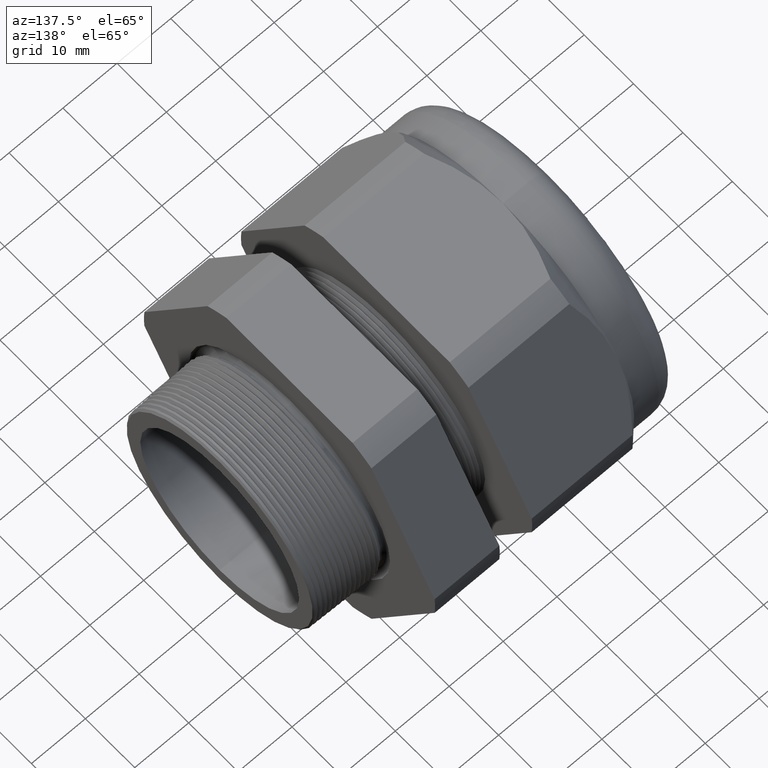
[diagram: clean part render]
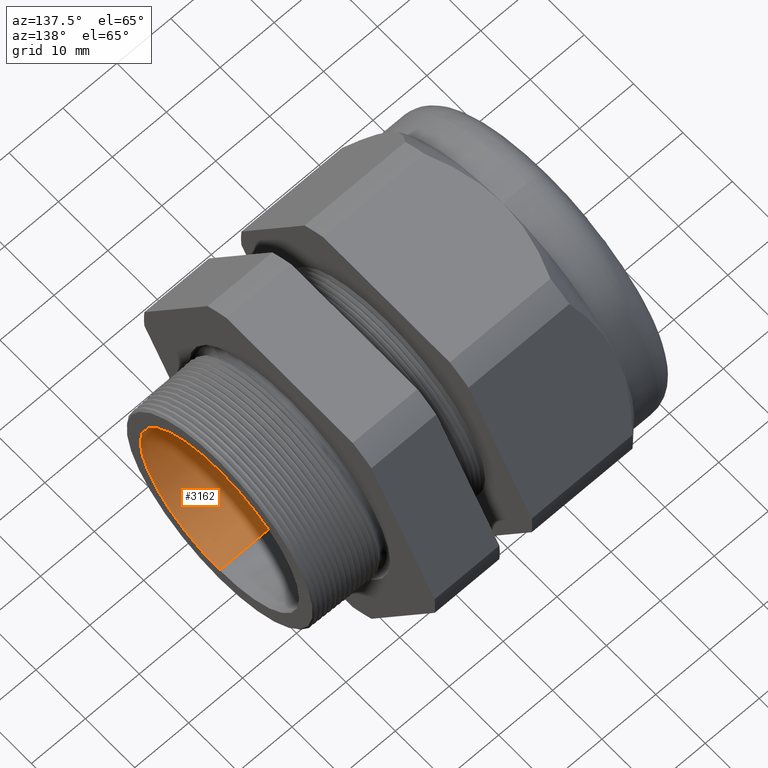
[diagram: same view with one face highlighted and labeled with its STEP entity id]
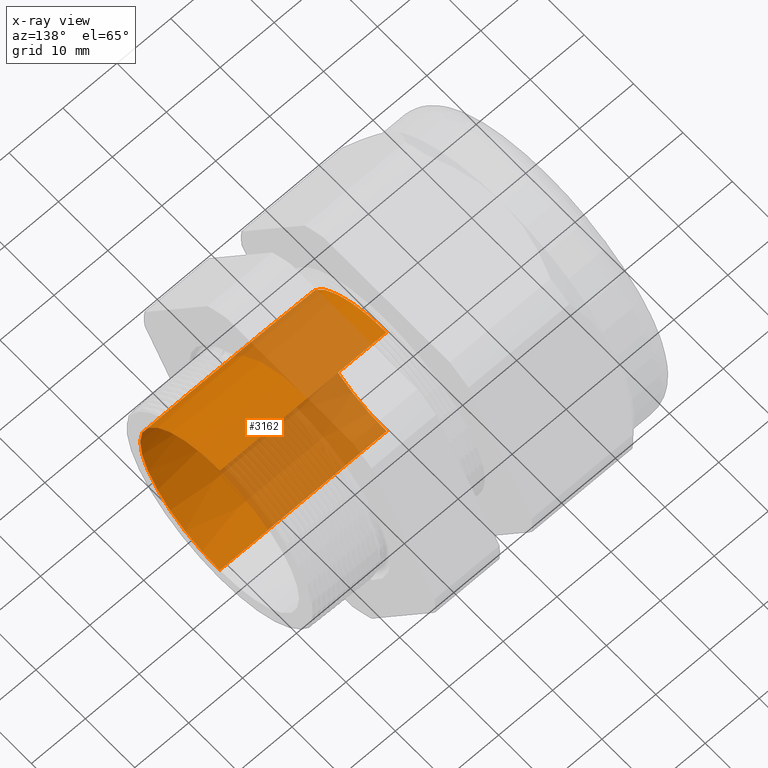
[diagram: x-ray of the same camera — body ghosted, the highlighted face saturated]
A machine part, auxiliary view. The second image highlights one B-rep face of the part: STEP entity #3162.
The next image is the same camera in x-ray: the body ghosted, the highlighted face saturated — about 50% of this face is hidden behind the body in this view.
In plain terms, the highlighted conical surface has half-angle 0.145 deg.
Its self-contained STEP definition (entity closure, byte-faithful):
#56 = EDGE_LOOP ( 'NONE', ( #2869, #1688, #1134, #4520 ) ) ;
#1083 = VERTEX_POINT ( 'NONE', #1596 ) ;
#1134 = ORIENTED_EDGE ( 'NONE', *, *, #1299, .T. ) ;
#1299 = EDGE_CURVE ( 'NONE', #1361, #1083, #1595, .T. ) ;
#1361 = VERTEX_POINT ( 'NONE', #1649 ) ;
#1586 = VERTEX_POINT ( 'NONE', #1648 ) ;
#1591 = DIRECTION ( 'NONE',  ( 0.0000000000000000000, 0.0000000000000000000, -1.000000000000000000 ) ) ;
#1592 = DIRECTION ( 'NONE',  ( 1.000000000000000000, 0.0000000000000000000, 0.0000000000000000000 ) ) ;
#1593 = CARTESIAN_POINT ( 'NONE',  ( 0.2000000000000000400, 0.0000000000000000000, 0.0000000000000000000 ) ) ;
#1594 = AXIS2_PLACEMENT_3D ( 'NONE', #1593, #1592, #1591 ) ;
#1595 = CIRCLE ( 'NONE', #1594, 0.6330845254709034400 ) ;
#1596 = CARTESIAN_POINT ( 'NONE',  ( 0.2000000000000000400, 0.0000000000000000000, -0.6330845254709034400 ) ) ;
#1632 = CARTESIAN_POINT ( 'NONE',  ( -1.018802799999999800, 0.0000000000000000000, -0.6300000000000000000 ) ) ;
#1643 = DIRECTION ( 'NONE',  ( 0.9999967975839531000, 3.099305439608670900E-019, 0.002530774948145480100 ) ) ;
#1644 = VECTOR ( 'NONE', #1643, 39.37007874015748100 ) ;
#1645 = CARTESIAN_POINT ( 'NONE',  ( -1.018802799999999800, 7.715274834628325400E-017, 0.6300000000000000000 ) ) ;
#1646 = LINE ( 'NONE', #1645, #1644 ) ;
#1648 = CARTESIAN_POINT ( 'NONE',  ( -1.018802799999999800, 7.715274834628325400E-017, 0.6300000000000000000 ) ) ;
#1649 = CARTESIAN_POINT ( 'NONE',  ( 0.2000000000000000400, 7.753049377076629200E-017, 0.6330845254709034400 ) ) ;
#1654 = DIRECTION ( 'NONE',  ( 0.0000000000000000000, 0.0000000000000000000, -1.000000000000000000 ) ) ;
#1655 = DIRECTION ( 'NONE',  ( 1.000000000000000000, 0.0000000000000000000, 0.0000000000000000000 ) ) ;
#1656 = CARTESIAN_POINT ( 'NONE',  ( -1.018802799999999800, 0.0000000000000000000, 0.0000000000000000000 ) ) ;
#1657 = AXIS2_PLACEMENT_3D ( 'NONE', #1656, #1655, #1654 ) ;
#1659 = CONICAL_SURFACE ( 'NONE', #1657, 0.6300000000000000000, 0.002530777649680375600 ) ;
#1660 = FACE_OUTER_BOUND ( 'NONE', #56, .T. ) ;
#1661 = DIRECTION ( 'NONE',  ( 0.0000000000000000000, 0.0000000000000000000, -1.000000000000000000 ) ) ;
#1662 = DIRECTION ( 'NONE',  ( 1.000000000000000000, 0.0000000000000000000, 0.0000000000000000000 ) ) ;
#1663 = CARTESIAN_POINT ( 'NONE',  ( -1.018802799999999800, 0.0000000000000000000, 0.0000000000000000000 ) ) ;
#1664 = AXIS2_PLACEMENT_3D ( 'NONE', #1663, #1662, #1661 ) ;
#1665 = CIRCLE ( 'NONE', #1664, 0.6300000000000000000 ) ;
#1688 = ORIENTED_EDGE ( 'NONE', *, *, #1782, .T. ) ;
#1782 = EDGE_CURVE ( 'NONE', #1586, #1361, #1646, .T. ) ;
#1879 = VERTEX_POINT ( 'NONE', #1632 ) ;
#2300 = DIRECTION ( 'NONE',  ( 0.9999967975839531000, 0.0000000000000000000, -0.002530774948145480100 ) ) ;
#2301 = VECTOR ( 'NONE', #2300, 39.37007874015748100 ) ;
#2302 = CARTESIAN_POINT ( 'NONE',  ( -1.018802799999999800, 0.0000000000000000000, -0.6300000000000000000 ) ) ;
#2303 = LINE ( 'NONE', #2302, #2301 ) ;
#2869 = ORIENTED_EDGE ( 'NONE', *, *, #2887, .F. ) ;
#2887 = EDGE_CURVE ( 'NONE', #1586, #1879, #1665, .T. ) ;
#3162 = ADVANCED_FACE ( 'NONE', ( #1660 ), #1659, .F. ) ;
#4520 = ORIENTED_EDGE ( 'NONE', *, *, #4552, .F. ) ;
#4552 = EDGE_CURVE ( 'NONE', #1879, #1083, #2303, .T. ) ;